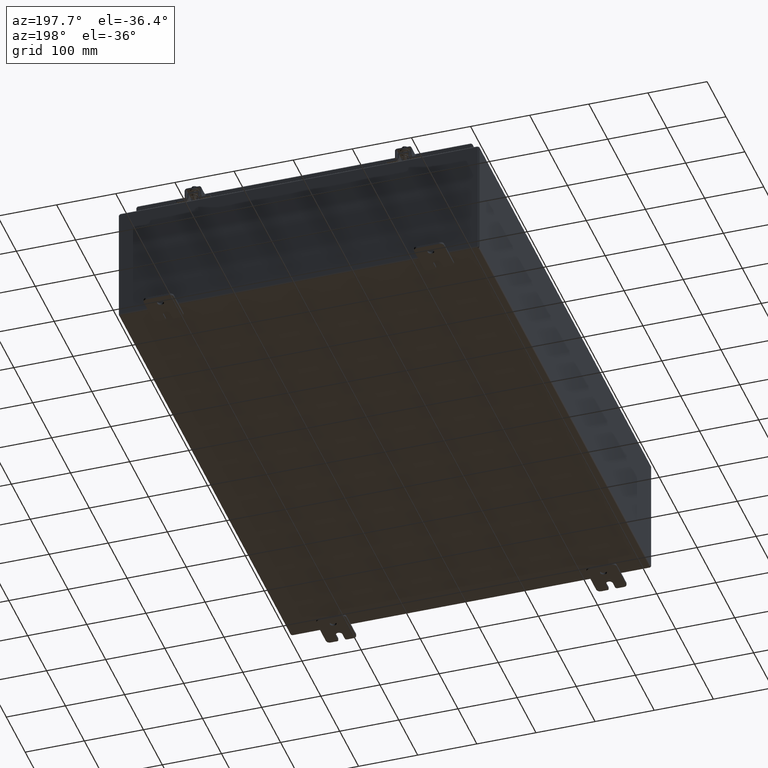
[diagram: clean part render]
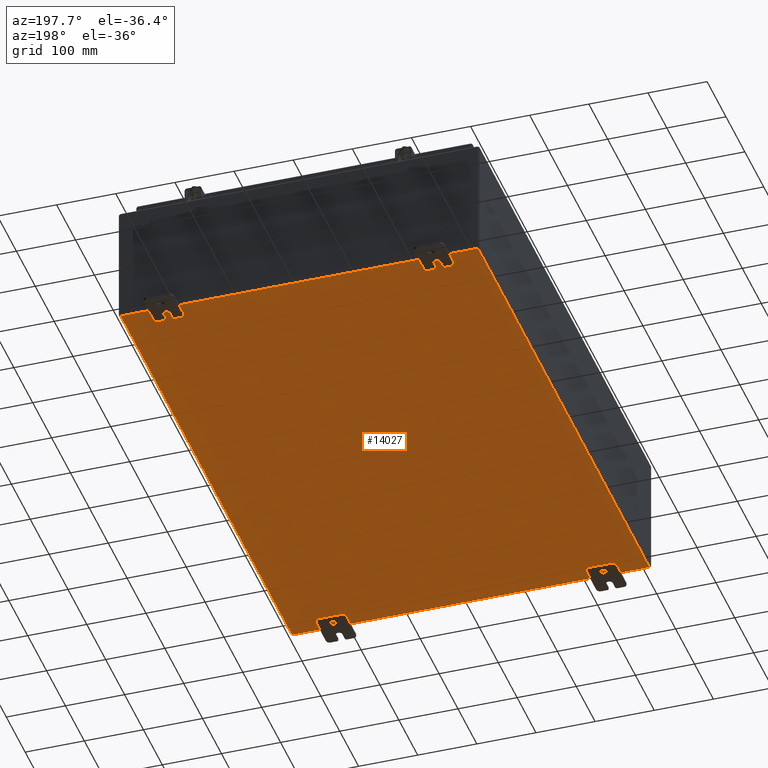
[diagram: same view with one face highlighted and labeled with its STEP entity id]
A machine part, auxiliary view. The second image highlights one B-rep face of the part: STEP entity #14027.
In plain terms, the highlighted planar face has unit normal (0, 0, 1).
Its self-contained STEP definition (entity closure, byte-faithful):
#1298=PLANE('',#14876);
#1755=FACE_OUTER_BOUND('',#2555,.T.);
#2555=EDGE_LOOP('',(#9999,#10000,#10001,#10002));
#3401=LINE('',#20018,#4710);
#3423=LINE('',#20169,#4732);
#3424=LINE('',#20171,#4733);
#3425=LINE('',#20172,#4734);
#4710=VECTOR('',#16223,35.7895);
#4732=VECTOR('',#16283,23.7895);
#4733=VECTOR('',#16284,35.7895);
#4734=VECTOR('',#16285,23.7895);
#6499=VERTEX_POINT('',#20009);
#6500=VERTEX_POINT('',#20017);
#6533=VERTEX_POINT('',#20168);
#6534=VERTEX_POINT('',#20170);
#7841=EDGE_CURVE('',#6500,#6499,#3401,.T.);
#7884=EDGE_CURVE('',#6499,#6533,#3423,.T.);
#7885=EDGE_CURVE('',#6533,#6534,#3424,.T.);
#7886=EDGE_CURVE('',#6534,#6500,#3425,.T.);
#9999=ORIENTED_EDGE('',*,*,#7841,.T.);
#10000=ORIENTED_EDGE('',*,*,#7884,.T.);
#10001=ORIENTED_EDGE('',*,*,#7885,.T.);
#10002=ORIENTED_EDGE('',*,*,#7886,.T.);
#14027=ADVANCED_FACE('',(#1755),#1298,.F.);
#14876=AXIS2_PLACEMENT_3D('',#20167,#16281,#16282);
#16223=DIRECTION('',(-1.56325869068425E-16,1.,0.));
#16281=DIRECTION('center_axis',(0.,0.,1.));
#16282=DIRECTION('ref_axis',(1.,0.,0.));
#16283=DIRECTION('',(1.,0.,0.));
#16284=DIRECTION('',(7.81629345342127E-17,-1.,0.));
#16285=DIRECTION('',(-1.,0.,0.));
#20009=CARTESIAN_POINT('',(-11.89475,17.89475,-2.18547839493141E-17));
#20017=CARTESIAN_POINT('',(-11.89475,-17.89475,-2.18547839493141E-17));
#20018=CARTESIAN_POINT('',(-11.89475,-8.947375,0.));
#20167=CARTESIAN_POINT('Origin',(1.3987061727561E-15,1.52586127937029E-16,
0.));
#20168=CARTESIAN_POINT('',(11.89475,17.89475,-3.27821759239712E-17));
#20169=CARTESIAN_POINT('',(-5.947375,17.89475,0.));
#20170=CARTESIAN_POINT('',(11.89475,-17.89475,-1.09273919746571E-17));
#20171=CARTESIAN_POINT('',(11.89475,8.947375,0.));
#20172=CARTESIAN_POINT('',(5.947375,-17.89475,0.));